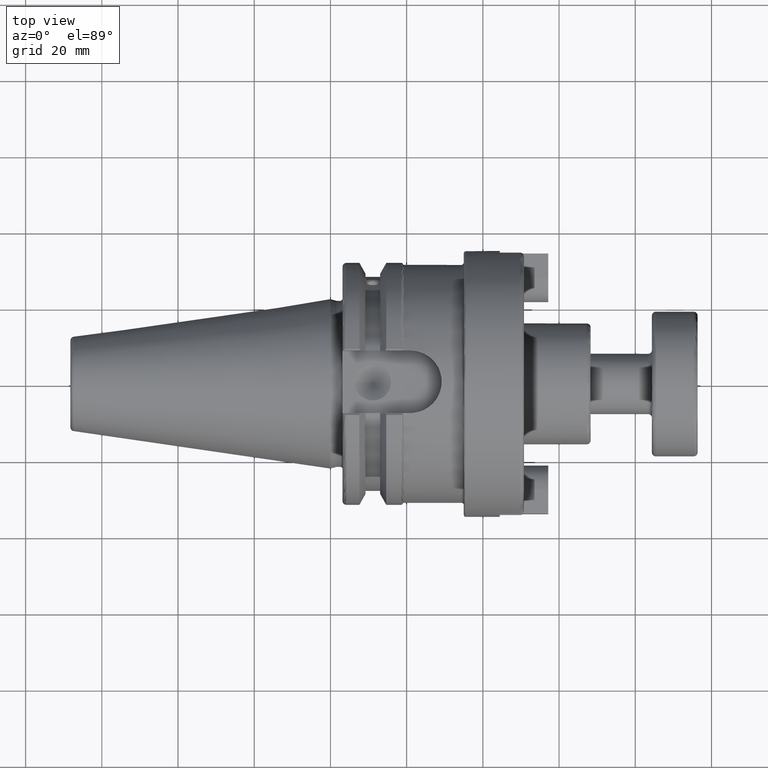
[diagram: clean part render]
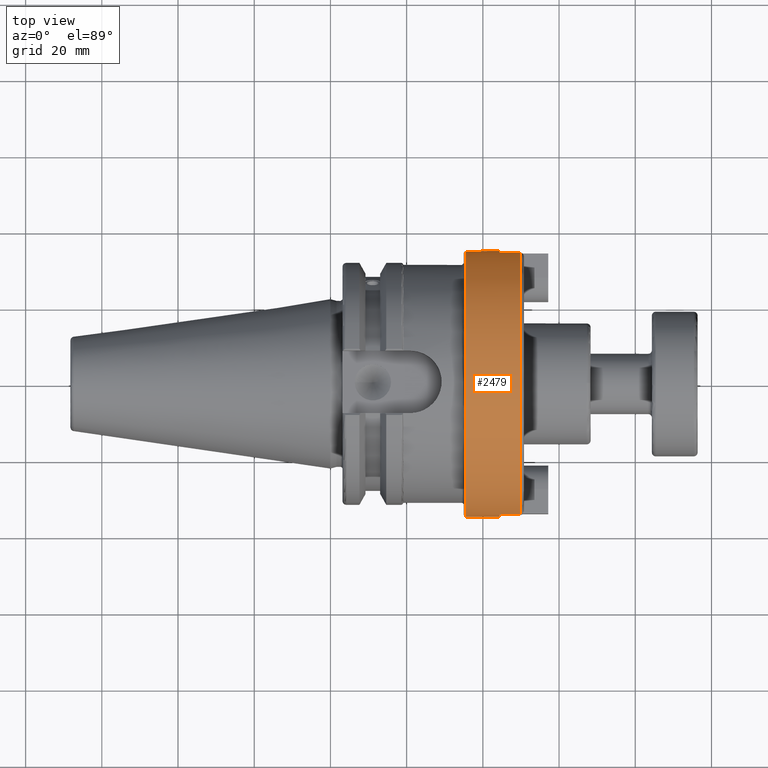
[diagram: same view with one face highlighted and labeled with its STEP entity id]
A machine part, top view. The second image highlights one B-rep face of the part: STEP entity #2479.
In plain terms, the highlighted cylindrical surface (bore or boss wall) has radius 34.925 mm, axis along (1, 0, 0).
Its self-contained STEP definition (entity closure, byte-faithful):
#114=CYLINDRICAL_SURFACE('',#2737,34.925);
#199=CIRCLE('',#2727,34.925);
#201=CIRCLE('',#2729,34.925);
#205=CIRCLE('',#2738,34.925);
#206=CIRCLE('',#2739,34.925);
#207=CIRCLE('',#2740,34.925);
#208=CIRCLE('',#2741,34.925);
#209=CIRCLE('',#2742,34.925);
#341=FACE_OUTER_BOUND('',#491,.T.);
#491=EDGE_LOOP('',(#1675,#1676,#1677,#1678,#1679,#1680,#1681,#1682,#1683,
#1684,#1685,#1686,#1687));
#661=LINE('',#3847,#822);
#666=LINE('',#3882,#827);
#668=LINE('',#3886,#829);
#669=LINE('',#3893,#830);
#670=LINE('',#3897,#831);
#822=VECTOR('',#3046,10.);
#827=VECTOR('',#3073,10.);
#829=VECTOR('',#3077,34.925);
#830=VECTOR('',#3084,10.);
#831=VECTOR('',#3087,10.);
#1021=VERTEX_POINT('',#3830);
#1024=VERTEX_POINT('',#3845);
#1025=VERTEX_POINT('',#3849);
#1027=VERTEX_POINT('',#3853);
#1032=VERTEX_POINT('',#3870);
#1034=VERTEX_POINT('',#3885);
#1035=VERTEX_POINT('',#3887);
#1036=VERTEX_POINT('',#3890);
#1037=VERTEX_POINT('',#3892);
#1038=VERTEX_POINT('',#3894);
#1039=VERTEX_POINT('',#3896);
#1274=EDGE_CURVE('',#1021,#1024,#661,.T.);
#1275=EDGE_CURVE('',#1024,#1025,#199,.T.);
#1278=EDGE_CURVE('',#1025,#1027,#201,.T.);
#1286=EDGE_CURVE('',#1027,#1032,#666,.T.);
#1288=EDGE_CURVE('',#1025,#1034,#668,.T.);
#1289=EDGE_CURVE('',#1035,#1034,#205,.T.);
#1290=EDGE_CURVE('',#1034,#1035,#206,.T.);
#1291=EDGE_CURVE('',#1036,#1032,#207,.T.);
#1292=EDGE_CURVE('',#1036,#1037,#669,.T.);
#1293=EDGE_CURVE('',#1037,#1038,#208,.T.);
#1294=EDGE_CURVE('',#1038,#1039,#670,.T.);
#1295=EDGE_CURVE('',#1021,#1039,#209,.T.);
#1675=ORIENTED_EDGE('',*,*,#1274,.T.);
#1676=ORIENTED_EDGE('',*,*,#1275,.T.);
#1677=ORIENTED_EDGE('',*,*,#1288,.T.);
#1678=ORIENTED_EDGE('',*,*,#1289,.F.);
#1679=ORIENTED_EDGE('',*,*,#1290,.F.);
#1680=ORIENTED_EDGE('',*,*,#1288,.F.);
#1681=ORIENTED_EDGE('',*,*,#1278,.T.);
#1682=ORIENTED_EDGE('',*,*,#1286,.T.);
#1683=ORIENTED_EDGE('',*,*,#1291,.F.);
#1684=ORIENTED_EDGE('',*,*,#1292,.T.);
#1685=ORIENTED_EDGE('',*,*,#1293,.T.);
#1686=ORIENTED_EDGE('',*,*,#1294,.T.);
#1687=ORIENTED_EDGE('',*,*,#1295,.F.);
#2479=ADVANCED_FACE('',(#341),#114,.T.);
#2727=AXIS2_PLACEMENT_3D('',#3850,#3049,#3050);
#2729=AXIS2_PLACEMENT_3D('',#3855,#3054,#3055);
#2737=AXIS2_PLACEMENT_3D('',#3884,#3075,#3076);
#2738=AXIS2_PLACEMENT_3D('',#3888,#3078,#3079);
#2739=AXIS2_PLACEMENT_3D('',#3889,#3080,#3081);
#2740=AXIS2_PLACEMENT_3D('',#3891,#3082,#3083);
#2741=AXIS2_PLACEMENT_3D('',#3895,#3085,#3086);
#2742=AXIS2_PLACEMENT_3D('',#3898,#3088,#3089);
#3046=DIRECTION('',(-1.,0.,0.));
#3049=DIRECTION('center_axis',(-1.,0.,0.));
#3050=DIRECTION('ref_axis',(0.,1.,0.));
#3054=DIRECTION('center_axis',(-1.,0.,0.));
#3055=DIRECTION('ref_axis',(0.,1.,0.));
#3073=DIRECTION('',(1.,0.,0.));
#3075=DIRECTION('center_axis',(1.,0.,0.));
#3076=DIRECTION('ref_axis',(0.,1.,0.));
#3077=DIRECTION('',(-1.,0.,0.));
#3078=DIRECTION('center_axis',(-1.,0.,0.));
#3079=DIRECTION('ref_axis',(0.,-1.,1.83697019872103E-16));
#3080=DIRECTION('center_axis',(-1.,0.,0.));
#3081=DIRECTION('ref_axis',(0.,-1.,1.83697019872103E-16));
#3082=DIRECTION('center_axis',(1.,0.,0.));
#3083=DIRECTION('ref_axis',(0.,-1.,1.83697019872103E-16));
#3084=DIRECTION('',(-1.,0.,0.));
#3085=DIRECTION('center_axis',(-1.,0.,0.));
#3086=DIRECTION('ref_axis',(0.,1.,0.));
#3087=DIRECTION('',(1.,0.,0.));
#3088=DIRECTION('center_axis',(1.,0.,0.));
#3089=DIRECTION('ref_axis',(0.,-1.,1.83697019872103E-16));
#3830=CARTESIAN_POINT('',(49.8,-34.3428758987945,-6.35));
#3845=CARTESIAN_POINT('',(44.45,-34.3428758987945,-6.35));
#3847=CARTESIAN_POINT('',(42.9,-34.3428758987945,-6.35));
#3849=CARTESIAN_POINT('',(44.45,-34.925,-4.27707894602213E-15));
#3850=CARTESIAN_POINT('Origin',(44.45,0.,0.));
#3853=CARTESIAN_POINT('',(44.45,-34.3428758987945,6.35));
#3855=CARTESIAN_POINT('Origin',(44.45,0.,0.));
#3870=CARTESIAN_POINT('',(49.8,-34.3428758987945,6.35));
#3882=CARTESIAN_POINT('',(42.9,-34.3428758987945,6.35));
#3884=CARTESIAN_POINT('Origin',(42.9,0.,0.));
#3885=CARTESIAN_POINT('',(35.5,-34.925,-4.27707894602213E-15));
#3886=CARTESIAN_POINT('',(42.9,-34.925,-4.27707894602213E-15));
#3887=CARTESIAN_POINT('',(35.5,-4.27707894602213E-15,34.925));
#3888=CARTESIAN_POINT('Origin',(35.5,0.,0.));
#3889=CARTESIAN_POINT('Origin',(35.5,0.,0.));
#3890=CARTESIAN_POINT('',(49.8,34.3428758987945,6.35));
#3891=CARTESIAN_POINT('Origin',(49.8,0.,0.));
#3892=CARTESIAN_POINT('',(44.45,34.3428758987945,6.35));
#3893=CARTESIAN_POINT('',(42.9,34.3428758987945,6.35));
#3894=CARTESIAN_POINT('',(44.45,34.3428758987945,-6.35));
#3895=CARTESIAN_POINT('Origin',(44.45,0.,0.));
#3896=CARTESIAN_POINT('',(49.8,34.3428758987945,-6.35));
#3897=CARTESIAN_POINT('',(42.9,34.3428758987945,-6.35));
#3898=CARTESIAN_POINT('Origin',(49.8,0.,0.));